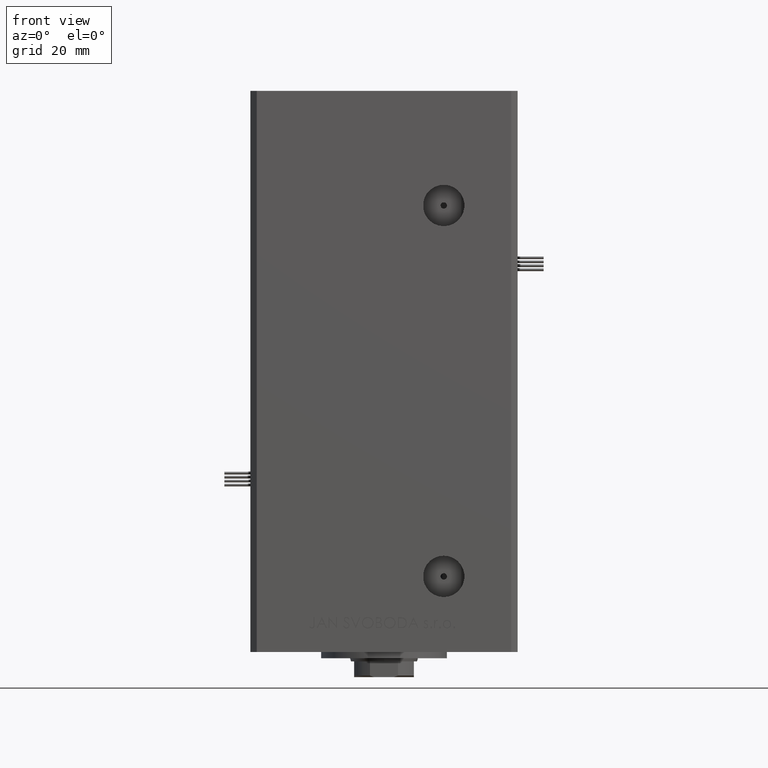
[diagram: clean part render]
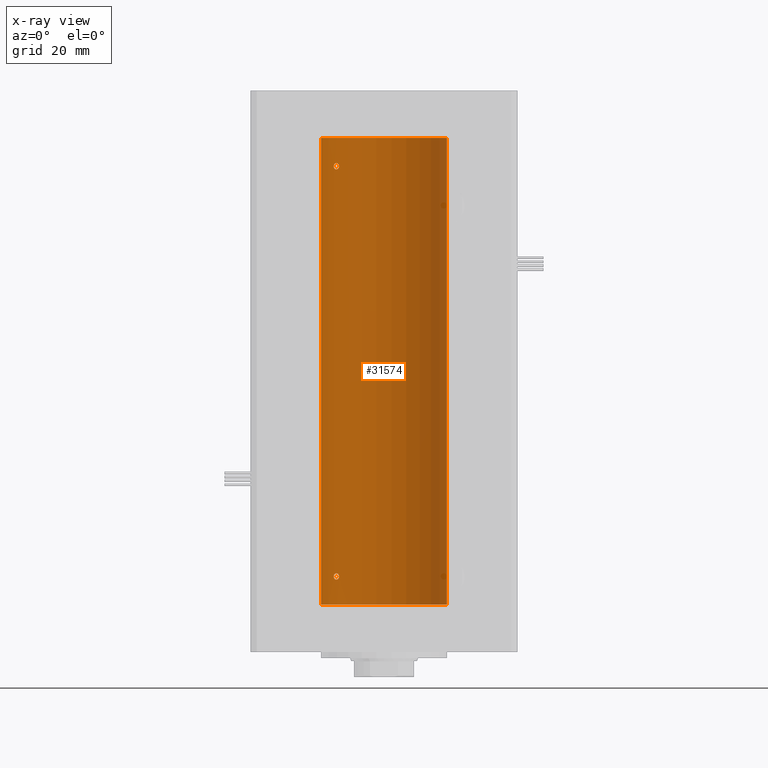
[diagram: x-ray — body ghosted, one internal face saturated and labeled with its STEP entity id]
A machine part, front view, then the same camera in x-ray: the body is ghosted and one INTERNAL B-rep face — a face not visible from any outside direction — is saturated and labeled: STEP entity #31574.
In plain terms, the highlighted cylindrical surface (partial cylindrical patch) has radius 20 mm, axis along (-0, -0, -1).
Its self-contained STEP definition (entity closure, byte-faithful):
#399 = CARTESIAN_POINT ( 'NONE',  ( -20.00000000000000000, 0.000000000000000000, 148.5000000000000000 ) ) ;
#671 = FACE_OUTER_BOUND ( 'NONE', #28067, .T. ) ;
#910 = CARTESIAN_POINT ( 'NONE',  ( -14.98188199575991675, 13.25008090651447112, 9.975236402857758478 ) ) ;
#1040 = B_SPLINE_CURVE_WITH_KNOTS ( 'NONE', 3,
 ( #10584, #18581, #38832, #35645, #50828, #43104, #26838, #2370, #27117, #51636, #23126, #11122, #26316, #14846, #6609, #51095 ),
 .UNSPECIFIED., .F., .F.,
 ( 4, 2, 2, 2, 2, 2, 2, 4 ),
 ( 1.734723475976807094E-18, 0.0004556152471946627231, 0.0009112304943893237115, 0.001822460988778648290, 0.002278076235973310742, 0.002733691483167973411, 0.003189306730362636080, 0.003644921977557298749 ),
 .UNSPECIFIED. ) ;
#1167 = CARTESIAN_POINT ( 'NONE',  ( -15.28000793038420468, 12.90520882930643687, 10.00215022853123159 ) ) ;
#1183 = CARTESIAN_POINT ( 'NONE',  ( -15.65267653428112382, 12.45028749062557161, 140.3454911519634720 ) ) ;
#1429 = CARTESIAN_POINT ( 'NONE',  ( -15.08229700616152513, 13.13572892147764648, 9.997430752714780766 ) ) ;
#1698 = CARTESIAN_POINT ( 'NONE',  ( -14.69171503997127992, 13.57092520311231176, 9.830547039779304441 ) ) ;
#2370 = CARTESIAN_POINT ( 'NONE',  ( -15.08054978948645264, 13.13774395934155059, 8.002776544152997218 ) ) ;
#2971 = DIRECTION ( 'NONE',  ( -0.000000000000000000, 0.000000000000000000, 1.000000000000000000 ) ) ;
#3149 = CARTESIAN_POINT ( 'NONE',  ( -14.31871019372461618, 13.96358505023716567, 139.1974785395779008 ) ) ;
#3723 = CARTESIAN_POINT ( 'NONE',  ( -20.00000000000000000, 0.000000000000000000, 148.5000000000000000 ) ) ;
#4445 = CARTESIAN_POINT ( 'NONE',  ( -14.28285685708539177, 14.00000000000031442, 8.999999999999852562 ) ) ;
#4888 = VERTEX_POINT ( 'NONE', #29969 ) ;
#5394 = VERTEX_POINT ( 'NONE', #9000 ) ;
#5658 = EDGE_CURVE ( 'NONE', #43390, #8598, #35061, .T. ) ;
#6131 = EDGE_CURVE ( 'NONE', #27022, #4888, #19089, .T. ) ;
#6609 = CARTESIAN_POINT ( 'NONE',  ( -14.28285685708577191, 13.99999999999997868, 8.847421050659347586 ) ) ;
#6726 = CIRCLE ( 'NONE', #49249, 20.00000000000000000 ) ;
#8598 = VERTEX_POINT ( 'NONE', #43323 ) ;
#8637 = CARTESIAN_POINT ( 'NONE',  ( -14.98188199575990431, 13.25008090651448001, 140.4752364028577176 ) ) ;
#9000 = CARTESIAN_POINT ( 'NONE',  ( 20.00000000000000000, 2.449293598294706513E-15, 148.5000000000000000 ) ) ;
#9136 = CARTESIAN_POINT ( 'NONE',  ( -14.56006338825496016, 13.71162570780883705, 9.705357955363311362 ) ) ;
#9152 = CARTESIAN_POINT ( 'NONE',  ( -15.28000793038419403, 12.90520882930644042, 140.5021502285312636 ) ) ;
#9353 = CARTESIAN_POINT ( 'NONE',  ( 0.000000000000000000, 0.000000000000000000, 0.000000000000000000 ) ) ;
#9630 = CIRCLE ( 'NONE', #14765, 20.00000000000000000 ) ;
#10584 = CARTESIAN_POINT ( 'NONE',  ( -16.00000000000000711, 11.99999999999999112, 9.000000000000001776 ) ) ;
#11122 = CARTESIAN_POINT ( 'NONE',  ( -14.51590294503184886, 13.75881262167378161, 8.336781207422362172 ) ) ;
#11491 = EDGE_CURVE ( 'NONE', #4888, #27022, #1040, .T. ) ;
#11561 = CARTESIAN_POINT ( 'NONE',  ( 20.00000000000000000, 2.449293598294706513E-15, 0.000000000000000000 ) ) ;
#11891 = EDGE_CURVE ( 'NONE', #8598, #43390, #36502, .T. ) ;
#12122 = EDGE_CURVE ( 'NONE', #13334, #34489, #6726, .T. ) ;
#12354 = CYLINDRICAL_SURFACE ( 'NONE', #46227, 20.00000000000000000 ) ;
#12626 = CARTESIAN_POINT ( 'NONE',  ( -15.99999999999999645, 12.00000000000001421, 139.6542407199934814 ) ) ;
#12881 = CARTESIAN_POINT ( 'NONE',  ( 0.000000000000000000, 0.000000000000000000, 148.5000000000000000 ) ) ;
#13334 = VERTEX_POINT ( 'NONE', #11561 ) ;
#13663 = CARTESIAN_POINT ( 'NONE',  ( -15.99999999999999645, 12.00000000000000711, 139.4999999999999716 ) ) ;
#13908 = CARTESIAN_POINT ( 'NONE',  ( -14.28285685708539177, 14.00000000000031442, 8.999999999999852562 ) ) ;
#14173 = CARTESIAN_POINT ( 'NONE',  ( -15.65267653428114158, 12.45028749062555207, 9.845491151963431165 ) ) ;
#14673 = ORIENTED_EDGE ( 'NONE', *, *, #11491, .F. ) ;
#14765 = AXIS2_PLACEMENT_3D ( 'NONE', #47714, #2971, #18655 ) ;
#14778 = CARTESIAN_POINT ( 'NONE',  ( -15.99999999999999645, 12.00000000000000711, 139.4999999999999716 ) ) ;
#14846 = CARTESIAN_POINT ( 'NONE',  ( -14.31871019372463572, 13.96358505023714969, 8.697478539577891965 ) ) ;
#15361 = CARTESIAN_POINT ( 'NONE',  ( -14.51590294503183109, 13.75881262167379404, 138.8367812074224332 ) ) ;
#15879 = CARTESIAN_POINT ( 'NONE',  ( -14.43642497935765512, 13.84184969151371902, 138.9420533359229069 ) ) ;
#15996 = ORIENTED_EDGE ( 'NONE', *, *, #12122, .F. ) ;
#16616 = FACE_BOUND ( 'NONE', #24651, .T. ) ;
#16887 = CARTESIAN_POINT ( 'NONE',  ( -14.51882058315760027, 13.75524947942078136, 140.1587346592185384 ) ) ;
#16905 = EDGE_LOOP ( 'NONE', ( #14673, #44520 ) ) ;
#17127 = CARTESIAN_POINT ( 'NONE',  ( -16.00000000000001066, 11.99999999999999467, 9.154240719993492092 ) ) ;
#17340 = DIRECTION ( 'NONE',  ( 1.000000000000000000, 0.000000000000000000, 0.000000000000000000 ) ) ;
#18145 = LINE ( 'NONE', #3723, #21273 ) ;
#18160 = CARTESIAN_POINT ( 'NONE',  ( -16.00000000000000711, 11.99999999999999112, 9.000000000000001776 ) ) ;
#18581 = CARTESIAN_POINT ( 'NONE',  ( -16.00000000000000711, 11.99999999999999112, 8.845692188641407938 ) ) ;
#18655 = DIRECTION ( 'NONE',  ( 1.000000000000000000, 0.000000000000000000, 0.000000000000000000 ) ) ;
#18682 = EDGE_CURVE ( 'NONE', #31545, #34489, #18145, .T. ) ;
#19089 = B_SPLINE_CURVE_WITH_KNOTS ( 'NONE', 3,
 ( #13908, #29381, #21639, #25640, #26171, #21131, #9136, #1698, #37642, #910, #1429, #1167, #25904, #26428, #14173, #22178, #33913, #50162, #17127, #18160 ),
 .UNSPECIFIED., .F., .F.,
 ( 4, 2, 2, 2, 2, 2, 2, 2, 2, 4 ),
 ( 0.003644921977557298749, 0.004100339128177154374, 0.004328047703487082620, 0.004555756278797009999, 0.005011173429416865624, 0.005466590580036722116, 0.005922007730656577741, 0.006377424881276433366, 0.006832842031896288991, 0.007288259182516144616 ),
 .UNSPECIFIED. ) ;
#19871 = CARTESIAN_POINT ( 'NONE',  ( -14.98166541227928583, 13.25033217142395792, 138.5247696149142200 ) ) ;
#20881 = CARTESIAN_POINT ( 'NONE',  ( -15.80861854366319363, 12.25167421322532491, 140.1760529919016278 ) ) ;
#21131 = CARTESIAN_POINT ( 'NONE',  ( -14.51882058315761270, 13.75524947942076892, 9.658734659218604079 ) ) ;
#21273 = VECTOR ( 'NONE', #51941, 1000.000000000000000 ) ;
#21399 = CARTESIAN_POINT ( 'NONE',  ( -15.08229700616151625, 13.13572892147764470, 140.4974307527147630 ) ) ;
#21639 = CARTESIAN_POINT ( 'NONE',  ( -14.31936354392036215, 13.96291496472314897, 9.304428457027322352 ) ) ;
#21657 = CARTESIAN_POINT ( 'NONE',  ( -14.40763032799401877, 13.87162499441318886, 139.9952174752552594 ) ) ;
#22178 = CARTESIAN_POINT ( 'NONE',  ( -15.80861854366321495, 12.25167421322530714, 9.676052991901700651 ) ) ;
#22235 = DIRECTION ( 'NONE',  ( -0.000000000000000000, -0.000000000000000000, -1.000000000000000000 ) ) ;
#23126 = CARTESIAN_POINT ( 'NONE',  ( -14.69070843596624165, 13.57200975233013374, 8.170264738076779665 ) ) ;
#23631 = CARTESIAN_POINT ( 'NONE',  ( -14.28285685708575770, 14.00000000000000355, 139.3474210506593352 ) ) ;
#23890 = CARTESIAN_POINT ( 'NONE',  ( -15.57359523075762198, 12.55100654799543314, 138.5686142754107095 ) ) ;
#24651 = EDGE_LOOP ( 'NONE', ( #32442, #48585 ) ) ;
#25400 = CARTESIAN_POINT ( 'NONE',  ( -15.37869370082499287, 12.78737709343838880, 140.4843784334833003 ) ) ;
#25640 = CARTESIAN_POINT ( 'NONE',  ( -14.40763032799402055, 13.87162499441318531, 9.495217475255241624 ) ) ;
#25904 = CARTESIAN_POINT ( 'NONE',  ( -15.37869370082499110, 12.78737709343837459, 9.984378433483312776 ) ) ;
#26171 = CARTESIAN_POINT ( 'NONE',  ( -14.44276720520015367, 13.83508275448402713, 9.554048662650275858 ) ) ;
#26228 = CARTESIAN_POINT ( 'NONE',  ( 20.00000000000000000, 2.449293598294706513E-15, 148.5000000000000000 ) ) ;
#26316 = CARTESIAN_POINT ( 'NONE',  ( -14.43642497935767111, 13.84184969151370304, 8.442053335922924617 ) ) ;
#26428 = CARTESIAN_POINT ( 'NONE',  ( -15.56338254739986127, 12.56194079578773959, 9.906815049669285500 ) ) ;
#26838 = CARTESIAN_POINT ( 'NONE',  ( -15.37869471769013430, 12.79018928545118072, 7.995165913711802297 ) ) ;
#27022 = VERTEX_POINT ( 'NONE', #4445 ) ;
#27117 = CARTESIAN_POINT ( 'NONE',  ( -14.98166541227930360, 13.25033217142394726, 8.024769614914273319 ) ) ;
#28067 = EDGE_LOOP ( 'NONE', ( #50847, #48516, #38087, #15996 ) ) ;
#28352 = DIRECTION ( 'NONE',  ( -0.000000000000000000, -0.000000000000000000, -1.000000000000000000 ) ) ;
#29139 = DIRECTION ( 'NONE',  ( -1.000000000000000000, 0.000000000000000000, 0.000000000000000000 ) ) ;
#29141 = CARTESIAN_POINT ( 'NONE',  ( -14.31936354392034971, 13.96291496472316140, 139.8044284570273419 ) ) ;
#29381 = CARTESIAN_POINT ( 'NONE',  ( -14.28285685708574348, 14.00000000000002132, 9.152512609665839349 ) ) ;
#29398 = CARTESIAN_POINT ( 'NONE',  ( -14.69171503997127459, 13.57092520311232065, 140.3305470397792760 ) ) ;
#29666 = CARTESIAN_POINT ( 'NONE',  ( -14.28285685708573105, 14.00000000000002487, 139.6525126096658482 ) ) ;
#29969 = CARTESIAN_POINT ( 'NONE',  ( -16.00000000000000711, 11.99999999999999112, 9.000000000000001776 ) ) ;
#31545 = VERTEX_POINT ( 'NONE', #399 ) ;
#31574 = ADVANCED_FACE ( 'NONE', ( #671, #41388, #16616 ), #12354, .F. ) ;
#31632 = CARTESIAN_POINT ( 'NONE',  ( -15.99999999999999645, 12.00000000000001243, 139.3456921886414648 ) ) ;
#31867 = EDGE_CURVE ( 'NONE', #5394, #31545, #9630, .T. ) ;
#32148 = CARTESIAN_POINT ( 'NONE',  ( -15.99999999999999645, 12.00000000000000711, 139.4999999999999716 ) ) ;
#32442 = ORIENTED_EDGE ( 'NONE', *, *, #5658, .F. ) ;
#33093 = DIRECTION ( 'NONE',  ( -0.000000000000000000, 0.000000000000000000, 1.000000000000000000 ) ) ;
#33153 = CARTESIAN_POINT ( 'NONE',  ( -14.44276720520014123, 13.83508275448404135, 140.0540486626502741 ) ) ;
#33913 = CARTESIAN_POINT ( 'NONE',  ( -15.87665094074984928, 12.16298652314401707, 9.566050066014016195 ) ) ;
#34489 = VERTEX_POINT ( 'NONE', #39611 ) ;
#35061 = B_SPLINE_CURVE_WITH_KNOTS ( 'NONE', 3,
 ( #32148, #31632, #43624, #35625, #39356, #23890, #40140, #36136, #19871, #52397, #39887, #15361, #15879, #3149, #23631, #35089 ),
 .UNSPECIFIED., .F., .F.,
 ( 4, 2, 2, 2, 2, 2, 2, 4 ),
 ( 0.000000000000000000, 0.0004556152471946793114, 0.0009112304943893586228, 0.001822460988778669107, 0.002278076235973324620, 0.002733691483167979483, 0.003189306730362634346, 0.003644921977557289642 ),
 .UNSPECIFIED. ) ;
#35089 = CARTESIAN_POINT ( 'NONE',  ( -14.28285685708538111, 14.00000000000032685, 139.4999999999998579 ) ) ;
#35625 = CARTESIAN_POINT ( 'NONE',  ( -15.87710824431565904, 12.16238752415382507, 138.9349218073222403 ) ) ;
#35645 = CARTESIAN_POINT ( 'NONE',  ( -15.87710824431567325, 12.16238752415380553, 8.434921807322277587 ) ) ;
#36136 = CARTESIAN_POINT ( 'NONE',  ( -15.08054978948642955, 13.13774395934156658, 138.5027765441530221 ) ) ;
#36502 = B_SPLINE_CURVE_WITH_KNOTS ( 'NONE', 3,
 ( #45401, #29666, #29141, #21657, #33153, #16887, #49141, #29398, #45661, #8637, #21399, #9152, #25400, #37656, #1183, #20881, #49916, #41903, #12626, #13663 ),
 .UNSPECIFIED., .F., .F.,
 ( 4, 2, 2, 2, 2, 2, 2, 2, 2, 4 ),
 ( 0.003644921977557289642, 0.004100339128177102332, 0.004328047703487008027, 0.004555756278796913722, 0.005011173429416777153, 0.005466590580036640584, 0.005922007730656504015, 0.006377424881276367447, 0.006832842031896230010, 0.007288259182516093442 ),
 .UNSPECIFIED. ) ;
#37642 = CARTESIAN_POINT ( 'NONE',  ( -14.78630942130980408, 13.46798002156742768, 9.891415279583981146 ) ) ;
#37656 = CARTESIAN_POINT ( 'NONE',  ( -15.56338254739985949, 12.56194079578774847, 140.4068150496692908 ) ) ;
#38087 = ORIENTED_EDGE ( 'NONE', *, *, #18682, .T. ) ;
#38226 = LINE ( 'NONE', #26228, #38795 ) ;
#38795 = VECTOR ( 'NONE', #22235, 1000.000000000000000 ) ;
#38832 = CARTESIAN_POINT ( 'NONE',  ( -15.97265980134108787, 12.03662641108510556, 8.695337314863897049 ) ) ;
#39356 = CARTESIAN_POINT ( 'NONE',  ( -15.80909732170550441, 12.25106527276996360, 138.8244517809014553 ) ) ;
#39611 = CARTESIAN_POINT ( 'NONE',  ( -20.00000000000000000, 0.000000000000000000, 0.000000000000000000 ) ) ;
#39887 = CARTESIAN_POINT ( 'NONE',  ( -14.69070843596622744, 13.57200975233015683, 138.6702647380768099 ) ) ;
#40140 = CARTESIAN_POINT ( 'NONE',  ( -15.37869471769012009, 12.79018928545119849, 138.4951659137117872 ) ) ;
#41369 = EDGE_CURVE ( 'NONE', #5394, #13334, #38226, .T. ) ;
#41388 = FACE_BOUND ( 'NONE', #16905, .T. ) ;
#41903 = CARTESIAN_POINT ( 'NONE',  ( -15.97258576326347779, 12.03672672663915044, 139.8051374092137280 ) ) ;
#43104 = CARTESIAN_POINT ( 'NONE',  ( -15.57359523075763796, 12.55100654799542070, 8.068614275410753933 ) ) ;
#43323 = CARTESIAN_POINT ( 'NONE',  ( -14.28285685708538111, 14.00000000000032685, 139.4999999999998579 ) ) ;
#43390 = VERTEX_POINT ( 'NONE', #14778 ) ;
#43624 = CARTESIAN_POINT ( 'NONE',  ( -15.97265980134107366, 12.03662641108512332, 139.1953373148638775 ) ) ;
#44520 = ORIENTED_EDGE ( 'NONE', *, *, #6131, .F. ) ;
#45401 = CARTESIAN_POINT ( 'NONE',  ( -14.28285685708538111, 14.00000000000032685, 139.4999999999998579 ) ) ;
#45661 = CARTESIAN_POINT ( 'NONE',  ( -14.78630942130979697, 13.46798002156743301, 140.3914152795839527 ) ) ;
#46227 = AXIS2_PLACEMENT_3D ( 'NONE', #12881, #28352, #29139 ) ;
#47714 = CARTESIAN_POINT ( 'NONE',  ( 0.000000000000000000, 0.000000000000000000, 148.5000000000000000 ) ) ;
#48516 = ORIENTED_EDGE ( 'NONE', *, *, #31867, .T. ) ;
#48585 = ORIENTED_EDGE ( 'NONE', *, *, #11891, .F. ) ;
#49141 = CARTESIAN_POINT ( 'NONE',  ( -14.56006338825494950, 13.71162570780885304, 140.2053579553632972 ) ) ;
#49249 = AXIS2_PLACEMENT_3D ( 'NONE', #9353, #33093, #17340 ) ;
#49916 = CARTESIAN_POINT ( 'NONE',  ( -15.87665094074984573, 12.16298652314402240, 140.0660500660139576 ) ) ;
#50162 = CARTESIAN_POINT ( 'NONE',  ( -15.97258576326347779, 12.03672672663913268, 9.305137409213726229 ) ) ;
#50828 = CARTESIAN_POINT ( 'NONE',  ( -15.80909732170550797, 12.25106527276994228, 8.324451780901403808 ) ) ;
#50847 = ORIENTED_EDGE ( 'NONE', *, *, #41369, .F. ) ;
#51095 = CARTESIAN_POINT ( 'NONE',  ( -14.28285685708539177, 14.00000000000031442, 8.999999999999852562 ) ) ;
#51636 = CARTESIAN_POINT ( 'NONE',  ( -14.78531327857344202, 13.46907986586307970, 8.109099006911455021 ) ) ;
#51941 = DIRECTION ( 'NONE',  ( -0.000000000000000000, -0.000000000000000000, -1.000000000000000000 ) ) ;
#52397 = CARTESIAN_POINT ( 'NONE',  ( -14.78531327857342781, 13.46907986586309747, 138.6090990069114639 ) ) ;